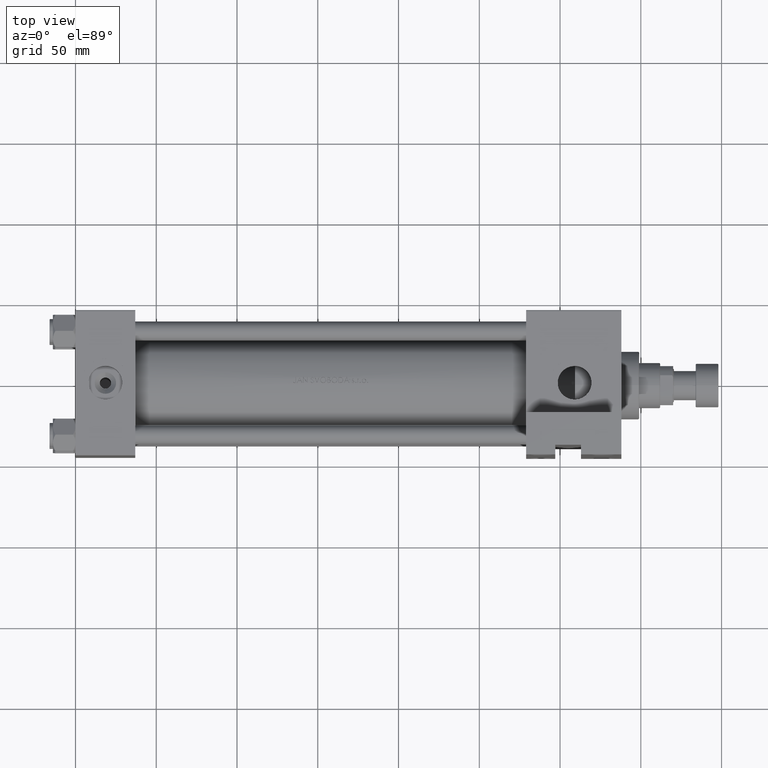
[diagram: clean part render]
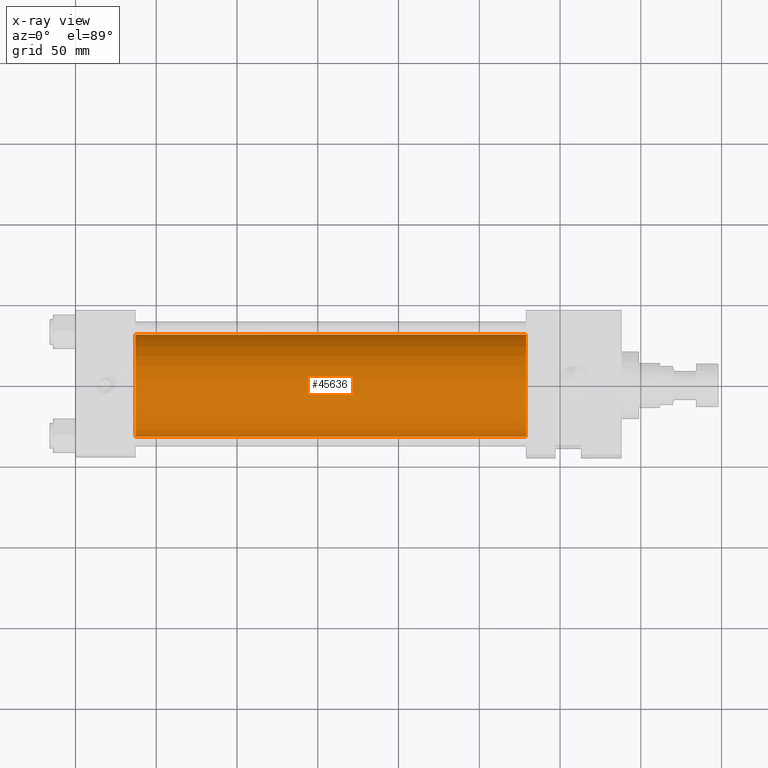
[diagram: x-ray — body ghosted, one internal face saturated and labeled with its STEP entity id]
A machine part, top view, then the same camera in x-ray: the body is ghosted and one INTERNAL B-rep face — a face not visible from any outside direction — is saturated and labeled: STEP entity #45636.
In plain terms, the highlighted cylindrical surface (partial cylindrical patch) has radius 31.5 mm, axis along (-1, -0, 0).
Its self-contained STEP definition (entity closure, byte-faithful):
#205 = CARTESIAN_POINT ( 'NONE',  ( 278.9999999999999432, 3.857637417314162689E-15, -32.50000000000000711 ) ) ;
#483 = EDGE_CURVE ( 'NONE', #1716, #49146, #45425, .T. ) ;
#515 = ORIENTED_EDGE ( 'NONE', *, *, #8685, .T. ) ;
#1716 = VERTEX_POINT ( 'NONE', #35062 ) ;
#1727 = AXIS2_PLACEMENT_3D ( 'NONE', #41585, #30654, #29920 ) ;
#2510 = AXIS2_PLACEMENT_3D ( 'NONE', #3599, #7407, #37881 ) ;
#2866 = DIRECTION ( 'NONE',  ( -1.000000000000000000, -0.000000000000000000, -0.000000000000000000 ) ) ;
#3599 = CARTESIAN_POINT ( 'NONE',  ( 278.9999999999999432, 0.000000000000000000, -1.000000000000007772 ) ) ;
#3747 = LINE ( 'NONE', #205, #13635 ) ;
#7407 = DIRECTION ( 'NONE',  ( 1.000000000000000000, 0.000000000000000000, 0.000000000000000000 ) ) ;
#7414 = DIRECTION ( 'NONE',  ( 0.000000000000000000, 0.000000000000000000, 1.000000000000000000 ) ) ;
#8561 = ORIENTED_EDGE ( 'NONE', *, *, #483, .T. ) ;
#8685 = EDGE_CURVE ( 'NONE', #49146, #47333, #3747, .T. ) ;
#9660 = CARTESIAN_POINT ( 'NONE',  ( 37.00000000000000000, 0.000000000000000000, 30.49999999999999289 ) ) ;
#10733 = FACE_OUTER_BOUND ( 'NONE', #14557, .T. ) ;
#13635 = VECTOR ( 'NONE', #31433, 1000.000000000000000 ) ;
#14557 = EDGE_LOOP ( 'NONE', ( #8561, #515, #37960, #17449 ) ) ;
#15581 = AXIS2_PLACEMENT_3D ( 'NONE', #46497, #2866, #7414 ) ;
#17449 = ORIENTED_EDGE ( 'NONE', *, *, #21989, .F. ) ;
#21989 = EDGE_CURVE ( 'NONE', #1716, #39518, #32548, .T. ) ;
#24642 = EDGE_CURVE ( 'NONE', #39518, #47333, #39820, .T. ) ;
#25640 = CARTESIAN_POINT ( 'NONE',  ( 278.9999999999999432, 3.857637417314162689E-15, -32.50000000000000711 ) ) ;
#29920 = DIRECTION ( 'NONE',  ( 0.000000000000000000, 0.000000000000000000, -1.000000000000000000 ) ) ;
#30654 = DIRECTION ( 'NONE',  ( 1.000000000000000000, 0.000000000000000000, 0.000000000000000000 ) ) ;
#31433 = DIRECTION ( 'NONE',  ( -1.000000000000000000, -0.000000000000000000, -0.000000000000000000 ) ) ;
#32428 = VECTOR ( 'NONE', #48490, 1000.000000000000000 ) ;
#32548 = LINE ( 'NONE', #33037, #32428 ) ;
#33037 = CARTESIAN_POINT ( 'NONE',  ( 278.9999999999999432, 0.000000000000000000, 30.49999999999999289 ) ) ;
#35062 = CARTESIAN_POINT ( 'NONE',  ( 278.9999999999999432, 0.000000000000000000, 30.49999999999999289 ) ) ;
#37881 = DIRECTION ( 'NONE',  ( 0.000000000000000000, 0.000000000000000000, -1.000000000000000000 ) ) ;
#37960 = ORIENTED_EDGE ( 'NONE', *, *, #24642, .F. ) ;
#38440 = CARTESIAN_POINT ( 'NONE',  ( 37.00000000000000000, 3.857637417314162689E-15, -32.50000000000000711 ) ) ;
#39518 = VERTEX_POINT ( 'NONE', #9660 ) ;
#39820 = CIRCLE ( 'NONE', #1727, 31.50000000000000000 ) ;
#41585 = CARTESIAN_POINT ( 'NONE',  ( 37.00000000000000000, 0.000000000000000000, -1.000000000000007772 ) ) ;
#45425 = CIRCLE ( 'NONE', #2510, 31.50000000000000000 ) ;
#45636 = ADVANCED_FACE ( 'NONE', ( #10733 ), #45983, .F. ) ;
#45983 = CYLINDRICAL_SURFACE ( 'NONE', #15581, 31.50000000000000000 ) ;
#46497 = CARTESIAN_POINT ( 'NONE',  ( 278.9999999999999432, 0.000000000000000000, -1.000000000000007772 ) ) ;
#47333 = VERTEX_POINT ( 'NONE', #38440 ) ;
#48490 = DIRECTION ( 'NONE',  ( -1.000000000000000000, -0.000000000000000000, -0.000000000000000000 ) ) ;
#49146 = VERTEX_POINT ( 'NONE', #25640 ) ;